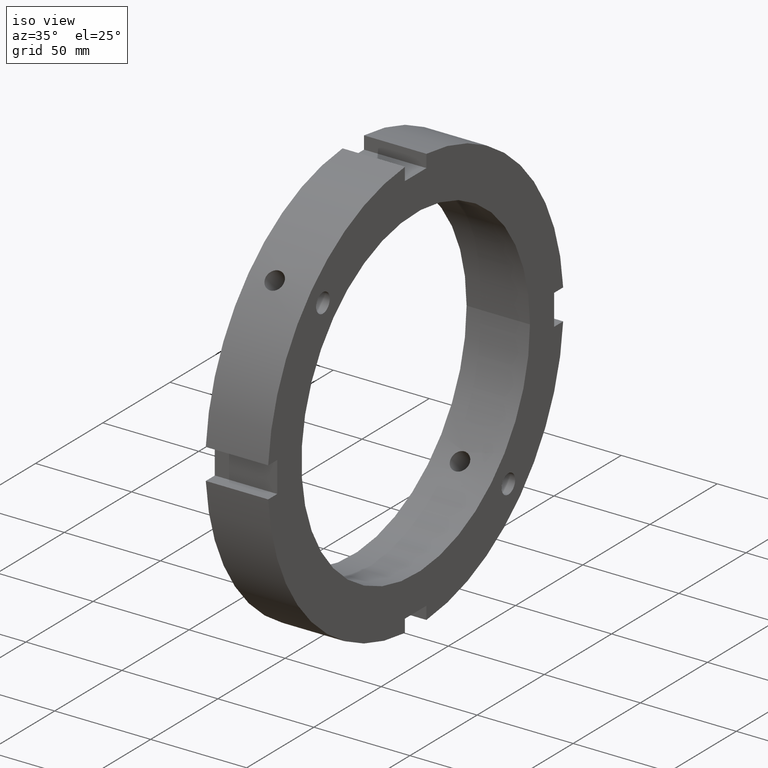
[diagram: clean part render]
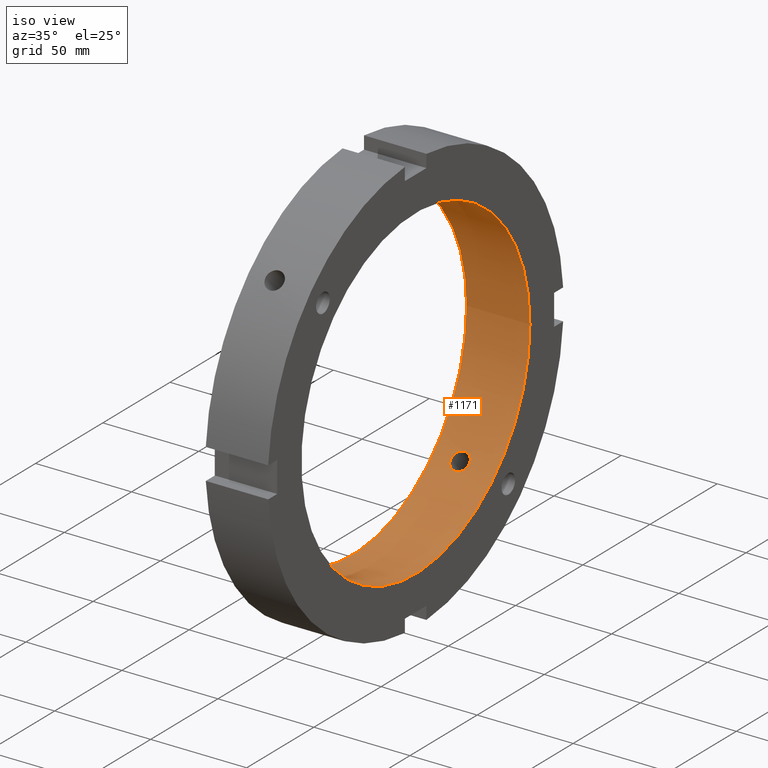
[diagram: same view with one face highlighted and labeled with its STEP entity id]
A machine part, iso view. The second image highlights one B-rep face of the part: STEP entity #1171.
In plain terms, the highlighted cylindrical surface (bore or boss wall) has radius 85 mm, axis along (1, 0, 0).
Its self-contained STEP definition (entity closure, byte-faithful):
#256=CARTESIAN_POINT('',(13.999999999999984,-63.40227866065068,56.614053561259858));
#257=VERTEX_POINT('',#256);
#258=CARTESIAN_POINT('',(13.999999999999984,-63.402278660650694,56.614053561259837));
#259=CARTESIAN_POINT('',(14.602836374740878,-63.402278660650694,56.614053561259837));
#260=CARTESIAN_POINT('',(15.245767039998402,-63.322079414098255,56.704271641118325));
#261=CARTESIAN_POINT('',(16.428349887984641,-62.993766847846366,57.068778696511167));
#262=CARTESIAN_POINT('',(16.968012948558588,-62.745397668970888,57.342801834121467));
#263=CARTESIAN_POINT('',(17.820212004282094,-62.166883234768626,57.969478862364944));
#264=CARTESIAN_POINT('',(18.189599264586882,-61.798101828790088,58.363896369407946));
#265=CARTESIAN_POINT('',(18.679496809854093,-60.979966152698204,59.218185695560742));
#266=CARTESIAN_POINT('',(18.799999999999983,-60.530345942773103,59.677806858939988));
#267=CARTESIAN_POINT('',(18.799999999999983,-59.677806858939974,60.53034594277311));
#268=CARTESIAN_POINT('',(18.679496809854097,-59.218185695560734,60.979966152698239));
#269=CARTESIAN_POINT('',(18.189599264586889,-58.363896369407939,61.798101828790124));
#270=CARTESIAN_POINT('',(17.820212004282094,-57.969478862364937,62.166883234768648));
#271=CARTESIAN_POINT('',(16.968012948558588,-57.34280183412146,62.745397668970909));
#272=CARTESIAN_POINT('',(16.428349887984627,-57.068778696511153,62.993766847846373));
#273=CARTESIAN_POINT('',(15.245767039998391,-56.704271641118311,63.322079414098241));
#274=CARTESIAN_POINT('',(14.602836374740875,-56.614053561259816,63.402278660650708));
#275=CARTESIAN_POINT('',(13.397163625259093,-56.614053561259816,63.402278660650708));
#276=CARTESIAN_POINT('',(12.754232960001579,-56.704271641118311,63.322079414098241));
#277=CARTESIAN_POINT('',(11.571650112015345,-57.068778696511153,62.993766847846373));
#278=CARTESIAN_POINT('',(11.03198705144138,-57.342801834121424,62.745397668970931));
#279=CARTESIAN_POINT('',(10.179787995717863,-57.969478862364895,62.166883234768676));
#280=CARTESIAN_POINT('',(9.810400735413099,-58.363896369407925,61.798101828790131));
#281=CARTESIAN_POINT('',(9.320503190145885,-59.218185695560734,60.979966152698225));
#282=CARTESIAN_POINT('',(9.199999999999983,-59.677806858939974,60.530345942773124));
#283=CARTESIAN_POINT('',(9.199999999999983,-60.530345942773103,59.677806858939981));
#284=CARTESIAN_POINT('',(9.320503190145876,-60.979966152698218,59.218185695560742));
#285=CARTESIAN_POINT('',(9.810400735413085,-61.798101828790102,58.363896369407946));
#286=CARTESIAN_POINT('',(10.179787995717875,-62.166883234768626,57.969478862364944));
#287=CARTESIAN_POINT('',(11.03198705144138,-62.745397668970888,57.342801834121467));
#288=CARTESIAN_POINT('',(11.571650112015327,-62.993766847846366,57.068778696511167));
#289=CARTESIAN_POINT('',(12.754232960001566,-63.322079414098255,56.704271641118325));
#290=CARTESIAN_POINT('',(13.39716362525909,-63.402278660650694,56.614053561259837));
#291=CARTESIAN_POINT('',(13.999999999999984,-63.402278660650694,56.614053561259837));
#292=B_SPLINE_CURVE_WITH_KNOTS('',3,(#258,#259,#260,#261,#262,#263,#264,#265,#266,#267,#268,#269,#270,#271,#272,#273,#274,#275,#276,#277,#278,#279,#280,#281,#282,#283,#284,#285,#286,#287,#288,#289,#290,#291),.UNSPECIFIED.,.T.,.U.,(4,2,2,2,2,2,2,2,2,2,2,2,2,2,2,2,4),(0.0,0.180850912422268,0.361701824844536,0.542552675066027,0.723403525287519,0.904254375509011,1.085105225730502,1.26595613815277,1.446807050575038,1.627657962997305,1.808508875419571,1.989359725641065,2.170210575862559,2.351061426084051,2.531912276305543,2.712763188727811,2.893614101150078),.UNSPECIFIED.);
#293=EDGE_CURVE('',#257,#257,#292,.T.);
#486=CARTESIAN_POINT('',(13.999999999999984,56.614053561259837,-63.402278660650694));
#487=VERTEX_POINT('',#486);
#488=CARTESIAN_POINT('',(13.999999999999984,56.61405356125983,-63.402278660650694));
#489=CARTESIAN_POINT('',(13.397163625259093,56.61405356125983,-63.402278660650694));
#490=CARTESIAN_POINT('',(12.75423296000158,56.704271641118311,-63.322079414098241));
#491=CARTESIAN_POINT('',(11.571650112015346,57.068778696511153,-62.993766847846373));
#492=CARTESIAN_POINT('',(11.03198705144138,57.342801834121424,-62.745397668970931));
#493=CARTESIAN_POINT('',(10.179787995717863,57.969478862364895,-62.166883234768676));
#494=CARTESIAN_POINT('',(9.810400735413099,58.363896369407925,-61.798101828790131));
#495=CARTESIAN_POINT('',(9.320503190145885,59.218185695560734,-60.979966152698225));
#496=CARTESIAN_POINT('',(9.199999999999983,59.677806858939974,-60.530345942773124));
#497=CARTESIAN_POINT('',(9.199999999999983,60.530345942773103,-59.677806858939988));
#498=CARTESIAN_POINT('',(9.320503190145876,60.979966152698218,-59.218185695560742));
#499=CARTESIAN_POINT('',(9.810400735413085,61.798101828790102,-58.363896369407946));
#500=CARTESIAN_POINT('',(10.179787995717875,62.166883234768633,-57.969478862364952));
#501=CARTESIAN_POINT('',(11.03198705144138,62.745397668970888,-57.342801834121467));
#502=CARTESIAN_POINT('',(11.571650112015327,62.993766847846366,-57.068778696511167));
#503=CARTESIAN_POINT('',(12.754232960001566,63.322079414098255,-56.704271641118325));
#504=CARTESIAN_POINT('',(13.39716362525909,63.402278660650701,-56.614053561259823));
#505=CARTESIAN_POINT('',(14.602836374740873,63.402278660650701,-56.614053561259823));
#506=CARTESIAN_POINT('',(15.245767039998395,63.322079414098241,-56.704271641118311));
#507=CARTESIAN_POINT('',(16.428349887984623,62.993766847846373,-57.068778696511153));
#508=CARTESIAN_POINT('',(16.968012948558588,62.745397668970924,-57.342801834121445));
#509=CARTESIAN_POINT('',(17.820212004282105,62.166883234768662,-57.969478862364916));
#510=CARTESIAN_POINT('',(18.189599264586857,61.798101828790109,-58.363896369407932));
#511=CARTESIAN_POINT('',(18.679496809854086,60.979966152698225,-59.218185695560734));
#512=CARTESIAN_POINT('',(18.799999999999983,60.530345942773103,-59.677806858939974));
#513=CARTESIAN_POINT('',(18.799999999999983,59.677806858939974,-60.53034594277311));
#514=CARTESIAN_POINT('',(18.679496809854097,59.218185695560734,-60.979966152698211));
#515=CARTESIAN_POINT('',(18.189599264586892,58.363896369407939,-61.798101828790095));
#516=CARTESIAN_POINT('',(17.820212004282098,57.969478862364937,-62.166883234768648));
#517=CARTESIAN_POINT('',(16.968012948558588,57.34280183412146,-62.745397668970909));
#518=CARTESIAN_POINT('',(16.428349887984627,57.068778696511153,-62.993766847846373));
#519=CARTESIAN_POINT('',(15.245767039998395,56.704271641118311,-63.322079414098241));
#520=CARTESIAN_POINT('',(14.602836374740878,56.61405356125983,-63.402278660650694));
#521=CARTESIAN_POINT('',(13.999999999999984,56.61405356125983,-63.402278660650694));
#522=B_SPLINE_CURVE_WITH_KNOTS('',3,(#488,#489,#490,#491,#492,#493,#494,#495,#496,#497,#498,#499,#500,#501,#502,#503,#504,#505,#506,#507,#508,#509,#510,#511,#512,#513,#514,#515,#516,#517,#518,#519,#520,#521),.UNSPECIFIED.,.T.,.U.,(4,2,2,2,2,2,2,2,2,2,2,2,2,2,2,2,4),(0.0,0.180850912422267,0.361701824844533,0.542552675066027,0.723403525287521,0.904254375509013,1.085105225730505,1.265956138152772,1.44680705057504,1.627657962997307,1.808508875419574,1.989359725641068,2.170210575862562,2.351061426084054,2.531912276305545,2.712763188727813,2.893614101150081),.UNSPECIFIED.);
#523=EDGE_CURVE('',#487,#487,#522,.T.);
#1002=CARTESIAN_POINT('',(32.999999999999986,85.0,0.0));
#1003=VERTEX_POINT('',#1002);
#1004=CARTESIAN_POINT('',(32.999999999999986,0.0,0.0));
#1005=DIRECTION('',(1.0,0.0,0.0));
#1006=DIRECTION('',(0.0,1.0,0.0));
#1007=AXIS2_PLACEMENT_3D('',#1004,#1005,#1006);
#1008=CIRCLE('',#1007,85.0);
#1009=EDGE_CURVE('',#1003,#1003,#1008,.T.);
#1095=CARTESIAN_POINT('',(-2.513009E-014,85.0,0.0));
#1096=VERTEX_POINT('',#1095);
#1097=CARTESIAN_POINT('',(-2.512747E-014,0.0,0.0));
#1098=DIRECTION('',(1.0,0.0,0.0));
#1099=DIRECTION('',(0.0,1.0,0.0));
#1100=AXIS2_PLACEMENT_3D('',#1097,#1098,#1099);
#1101=CIRCLE('',#1100,85.0);
#1102=EDGE_CURVE('',#1096,#1096,#1101,.T.);
#1154=CARTESIAN_POINT('',(16.499999999999979,0.0,0.0));
#1155=DIRECTION('',(1.0,0.0,0.0));
#1156=DIRECTION('',(0.0,1.0,0.0));
#1157=AXIS2_PLACEMENT_3D('',#1154,#1155,#1156);
#1158=CYLINDRICAL_SURFACE('',#1157,85.0);
#1159=ORIENTED_EDGE('',*,*,#1102,.F.);
#1160=EDGE_LOOP('',(#1159));
#1161=FACE_OUTER_BOUND('',#1160,.T.);
#1162=ORIENTED_EDGE('',*,*,#293,.T.);
#1163=EDGE_LOOP('',(#1162));
#1164=FACE_BOUND('',#1163,.T.);
#1165=ORIENTED_EDGE('',*,*,#523,.T.);
#1166=EDGE_LOOP('',(#1165));
#1167=FACE_BOUND('',#1166,.T.);
#1168=ORIENTED_EDGE('',*,*,#1009,.T.);
#1169=EDGE_LOOP('',(#1168));
#1170=FACE_BOUND('',#1169,.T.);
#1171=ADVANCED_FACE('',(#1161,#1164,#1167,#1170),#1158,.F.);